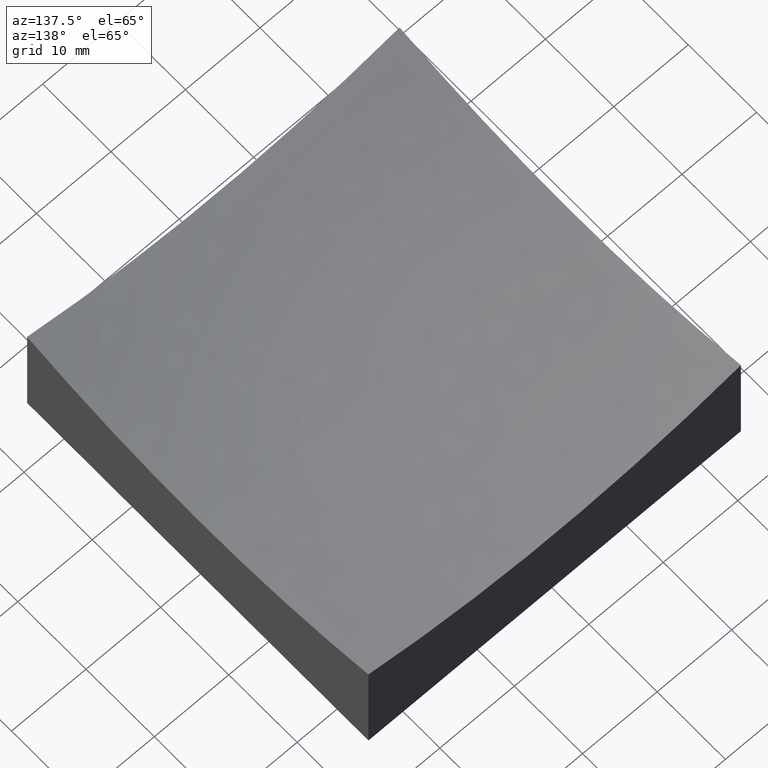
[diagram: clean part render]
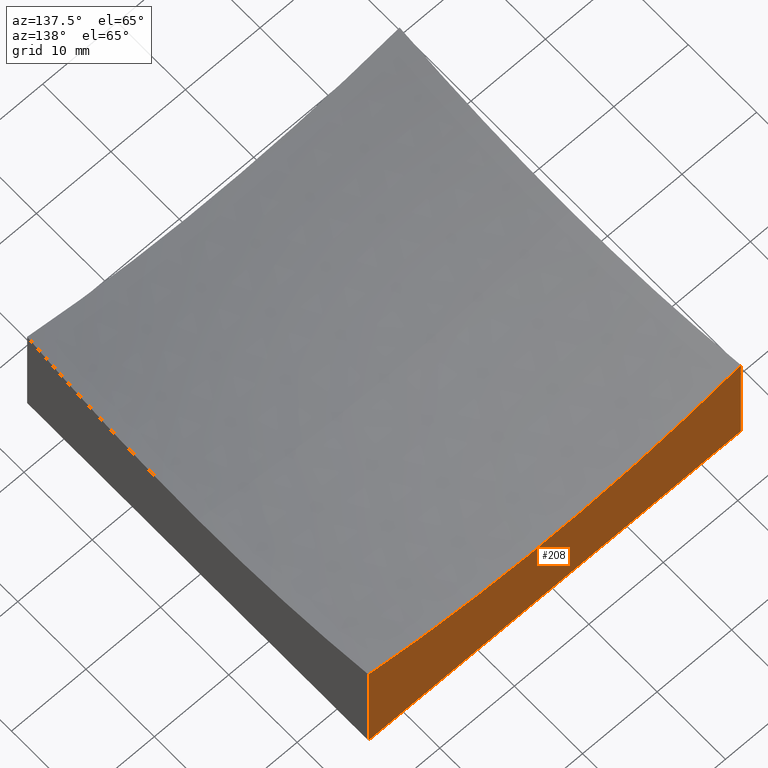
[diagram: same view with one face highlighted and labeled with its STEP entity id]
A machine part, auxiliary view. The second image highlights one B-rep face of the part: STEP entity #208.
In plain terms, the highlighted planar face has unit normal (0, 1, 0).
Its self-contained STEP definition (entity closure, byte-faithful):
#8 = CARTESIAN_POINT ( 'NONE',  ( -25.00000000000000355, 24.99999999999999645, 50.00000000000000000 ) ) ;
#11 = EDGE_CURVE ( 'NONE', #210, #59, #57, .T. ) ;
#23 = CARTESIAN_POINT ( 'NONE',  ( 24.99999999999999645, 24.99999999999999645, 0.0000000000000000000 ) ) ;
#26 = DIRECTION ( 'NONE',  ( 0.0000000000000000000, 1.000000000000000000, 0.0000000000000000000 ) ) ;
#29 = CIRCLE ( 'NONE', #182, 96.82458365518536425 ) ;
#40 = CARTESIAN_POINT ( 'NONE',  ( 24.99999999999999645, 24.99999999999999645, 15.45856533065151339 ) ) ;
#42 = DIRECTION ( 'NONE',  ( 0.0000000000000000000, -0.0000000000000000000, 1.000000000000000000 ) ) ;
#47 = CARTESIAN_POINT ( 'NONE',  ( -25.00000000000000355, 24.99999999999999645, 0.0000000000000000000 ) ) ;
#52 = ORIENTED_EDGE ( 'NONE', *, *, #131, .F. ) ;
#57 = LINE ( 'NONE', #116, #181 ) ;
#59 = VERTEX_POINT ( 'NONE', #237 ) ;
#60 = ORIENTED_EDGE ( 'NONE', *, *, #11, .F. ) ;
#65 = DIRECTION ( 'NONE',  ( -0.0000000000000000000, -0.0000000000000000000, -1.000000000000000000 ) ) ;
#79 = DIRECTION ( 'NONE',  ( -0.0000000000000000000, -0.0000000000000000000, -1.000000000000000000 ) ) ;
#105 = CARTESIAN_POINT ( 'NONE',  ( 24.99999999999999645, 24.99999999999999645, 50.00000000000000000 ) ) ;
#107 = CARTESIAN_POINT ( 'NONE',  ( -25.00000000000000711, 24.99999999999999645, 15.45856533065151339 ) ) ;
#113 = EDGE_LOOP ( 'NONE', ( #115, #137, #52, #60 ) ) ;
#115 = ORIENTED_EDGE ( 'NONE', *, *, #144, .F. ) ;
#116 = CARTESIAN_POINT ( 'NONE',  ( -25.00000000000000355, 24.99999999999999645, 50.00000000000000000 ) ) ;
#122 = PLANE ( 'NONE',  #123 ) ;
#123 = AXIS2_PLACEMENT_3D ( 'NONE', #8, #26, #42 ) ;
#124 = LINE ( 'NONE', #105, #204 ) ;
#125 = DIRECTION ( 'NONE',  ( 1.000000000000000000, 0.0000000000000000000, 0.0000000000000000000 ) ) ;
#130 = VERTEX_POINT ( 'NONE', #23 ) ;
#131 = EDGE_CURVE ( 'NONE', #59, #130, #222, .T. ) ;
#137 = ORIENTED_EDGE ( 'NONE', *, *, #175, .T. ) ;
#142 = DIRECTION ( 'NONE',  ( 0.0000000000000000000, 1.000000000000000000, 0.0000000000000000000 ) ) ;
#144 = EDGE_CURVE ( 'NONE', #166, #210, #29, .T. ) ;
#158 = DIRECTION ( 'NONE',  ( 0.0000000000000000000, 0.0000000000000000000, 1.000000000000000000 ) ) ;
#159 = CARTESIAN_POINT ( 'NONE',  ( 1.334865011070615797E-14, 24.99999999999999645, 108.9999999999999858 ) ) ;
#166 = VERTEX_POINT ( 'NONE', #40 ) ;
#175 = EDGE_CURVE ( 'NONE', #166, #130, #124, .T. ) ;
#181 = VECTOR ( 'NONE', #79, 1000.000000000000000 ) ;
#182 = AXIS2_PLACEMENT_3D ( 'NONE', #159, #142, #158 ) ;
#204 = VECTOR ( 'NONE', #65, 1000.000000000000000 ) ;
#208 = ADVANCED_FACE ( 'NONE', ( #219 ), #122, .T. ) ;
#210 = VERTEX_POINT ( 'NONE', #107 ) ;
#219 = FACE_OUTER_BOUND ( 'NONE', #113, .T. ) ;
#222 = LINE ( 'NONE', #47, #239 ) ;
#237 = CARTESIAN_POINT ( 'NONE',  ( -25.00000000000000355, 24.99999999999999645, 0.0000000000000000000 ) ) ;
#239 = VECTOR ( 'NONE', #125, 1000.000000000000000 ) ;